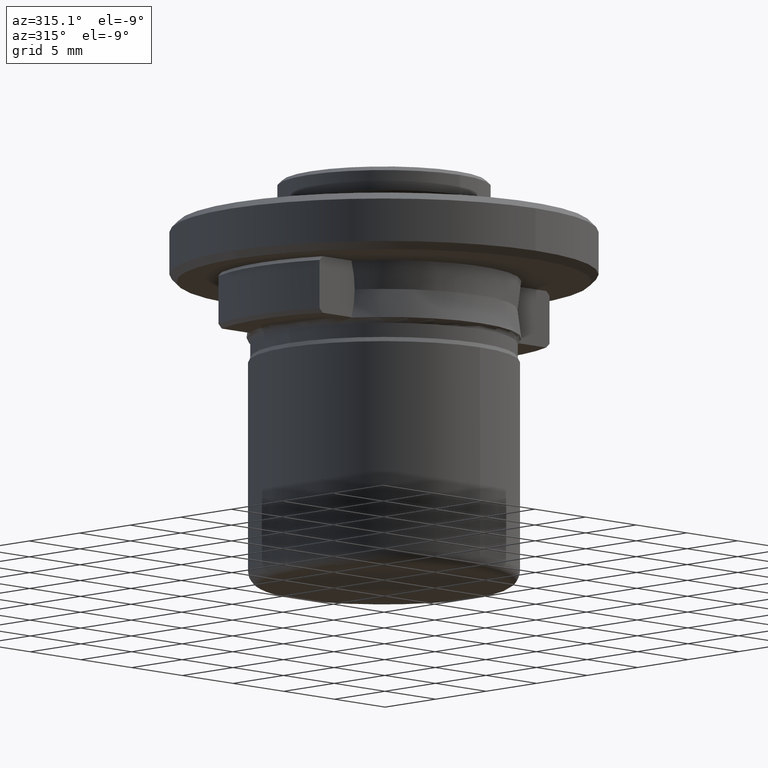
[diagram: clean part render]
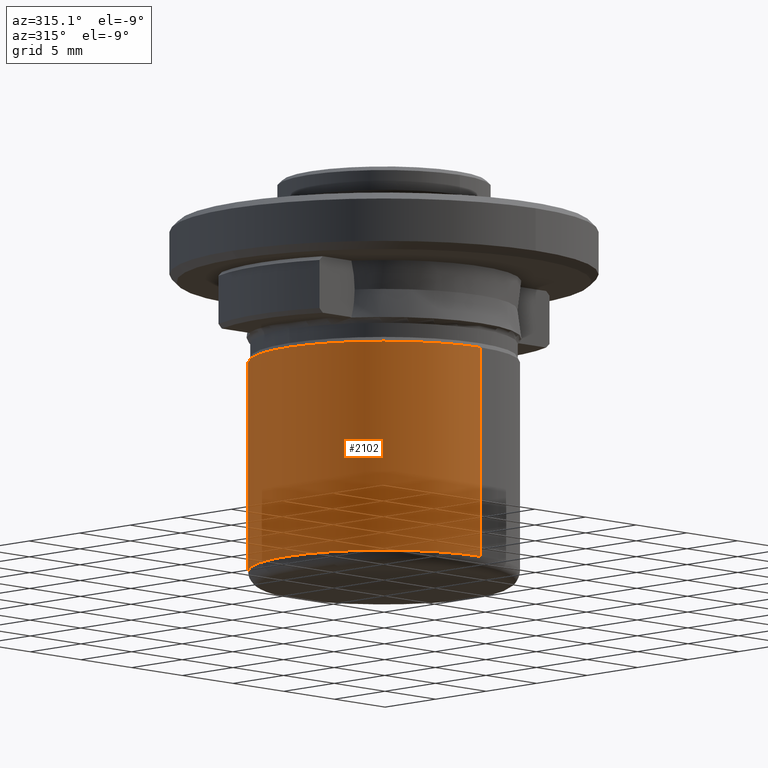
[diagram: same view with one face highlighted and labeled with its STEP entity id]
A machine part, auxiliary view. The second image highlights one B-rep face of the part: STEP entity #2102.
In plain terms, the highlighted cylindrical surface (partial cylindrical patch) has radius 9.5 mm, axis along (0, -0, 1).
Its self-contained STEP definition (entity closure, byte-faithful):
#27 = CIRCLE ( 'NONE', #1386, 9.500000000000000000 ) ;
#52 = AXIS2_PLACEMENT_3D ( 'NONE', #1679, #673, #1859 ) ;
#67 = AXIS2_PLACEMENT_3D ( 'NONE', #336, #128, #1003 ) ;
#111 = AXIS2_PLACEMENT_3D ( 'NONE', #753, #929, #1084 ) ;
#122 = CARTESIAN_POINT ( 'NONE',  ( 1.163414459189985500E-015, 9.500000000000000000, 3.030000000000088200 ) ) ;
#128 = DIRECTION ( 'NONE',  ( 0.0000000000000000000, 0.0000000000000000000, -1.000000000000000000 ) ) ;
#173 = ORIENTED_EDGE ( 'NONE', *, *, #1507, .T. ) ;
#311 = VERTEX_POINT ( 'NONE', #122 ) ;
#321 = VERTEX_POINT ( 'NONE', #396 ) ;
#336 = CARTESIAN_POINT ( 'NONE',  ( 0.0000000000000000000, 0.0000000000000000000, 3.030000000000088200 ) ) ;
#396 = CARTESIAN_POINT ( 'NONE',  ( 0.0000000000000000000, -9.500000000000000000, -11.75000000000000000 ) ) ;
#402 = CARTESIAN_POINT ( 'NONE',  ( 0.0000000000000000000, 0.0000000000000000000, 3.030000000000088200 ) ) ;
#404 = VECTOR ( 'NONE', #905, 1000.000000000000000 ) ;
#405 = EDGE_CURVE ( 'NONE', #1431, #311, #1743, .T. ) ;
#468 = VERTEX_POINT ( 'NONE', #908 ) ;
#472 = CARTESIAN_POINT ( 'NONE',  ( 0.0000000000000000000, 2.364620801796248300E-016, -11.75000000000000000 ) ) ;
#523 = AXIS2_PLACEMENT_3D ( 'NONE', #472, #1651, #646 ) ;
#564 = CARTESIAN_POINT ( 'NONE',  ( 1.163414459189985500E-015, 9.500000000000000000, -6.570177872000000400 ) ) ;
#573 = DIRECTION ( 'NONE',  ( -1.000000000000000000, 0.0000000000000000000, -9.312726028928122700E-015 ) ) ;
#582 = VERTEX_POINT ( 'NONE', #774 ) ;
#646 = DIRECTION ( 'NONE',  ( 1.000000000000000000, 0.0000000000000000000, 0.0000000000000000000 ) ) ;
#673 = DIRECTION ( 'NONE',  ( 0.0000000000000000000, 0.0000000000000000000, 1.000000000000000000 ) ) ;
#748 = CYLINDRICAL_SURFACE ( 'NONE', #111, 9.500000000000000000 ) ;
#753 = CARTESIAN_POINT ( 'NONE',  ( 0.0000000000000000000, 0.0000000000000000000, -6.570177872000000400 ) ) ;
#774 = CARTESIAN_POINT ( 'NONE',  ( -9.500000000000001800, 1.399876539369610000E-015, -11.75000000000000000 ) ) ;
#905 = DIRECTION ( 'NONE',  ( 0.0000000000000000000, -4.565061778886334800E-017, 1.000000000000000000 ) ) ;
#908 = CARTESIAN_POINT ( 'NONE',  ( 1.163414459189985500E-015, 9.500000000000000000, -11.75000000000000000 ) ) ;
#929 = DIRECTION ( 'NONE',  ( 0.0000000000000000000, -4.565061778886334800E-017, 1.000000000000000000 ) ) ;
#1003 = DIRECTION ( 'NONE',  ( -1.000000000000000000, 0.0000000000000000000, -9.312726028928122700E-015 ) ) ;
#1063 = EDGE_CURVE ( 'NONE', #468, #311, #1808, .T. ) ;
#1084 = DIRECTION ( 'NONE',  ( 0.0000000000000000000, -1.000000000000000000, 0.0000000000000000000 ) ) ;
#1118 = EDGE_CURVE ( 'NONE', #582, #321, #1196, .T. ) ;
#1173 = CARTESIAN_POINT ( 'NONE',  ( 0.0000000000000000000, -9.500000000000000000, -6.570177872000000400 ) ) ;
#1196 = CIRCLE ( 'NONE', #52, 9.500000000000000000 ) ;
#1319 = CARTESIAN_POINT ( 'NONE',  ( -9.499999999999957400, 0.0000000000000000000, 3.030000000000088200 ) ) ;
#1326 = LINE ( 'NONE', #1173, #1660 ) ;
#1338 = DIRECTION ( 'NONE',  ( 0.0000000000000000000, -4.565061778886334800E-017, 1.000000000000000000 ) ) ;
#1366 = VERTEX_POINT ( 'NONE', #1970 ) ;
#1386 = AXIS2_PLACEMENT_3D ( 'NONE', #402, #1574, #573 ) ;
#1431 = VERTEX_POINT ( 'NONE', #1319 ) ;
#1501 = CIRCLE ( 'NONE', #523, 9.500000000000000000 ) ;
#1503 = EDGE_LOOP ( 'NONE', ( #2066, #1649, #1856, #173, #1548, #2050 ) ) ;
#1507 = EDGE_CURVE ( 'NONE', #321, #1366, #1326, .T. ) ;
#1548 = ORIENTED_EDGE ( 'NONE', *, *, #2075, .T. ) ;
#1574 = DIRECTION ( 'NONE',  ( 0.0000000000000000000, 0.0000000000000000000, -1.000000000000000000 ) ) ;
#1642 = FACE_OUTER_BOUND ( 'NONE', #1503, .T. ) ;
#1649 = ORIENTED_EDGE ( 'NONE', *, *, #1684, .T. ) ;
#1651 = DIRECTION ( 'NONE',  ( 0.0000000000000000000, 0.0000000000000000000, 1.000000000000000000 ) ) ;
#1660 = VECTOR ( 'NONE', #1338, 1000.000000000000000 ) ;
#1679 = CARTESIAN_POINT ( 'NONE',  ( 0.0000000000000000000, 2.364620801796248300E-016, -11.75000000000000000 ) ) ;
#1684 = EDGE_CURVE ( 'NONE', #468, #582, #1501, .T. ) ;
#1743 = CIRCLE ( 'NONE', #67, 9.500000000000000000 ) ;
#1808 = LINE ( 'NONE', #564, #404 ) ;
#1856 = ORIENTED_EDGE ( 'NONE', *, *, #1118, .T. ) ;
#1859 = DIRECTION ( 'NONE',  ( 1.000000000000000000, 0.0000000000000000000, 0.0000000000000000000 ) ) ;
#1970 = CARTESIAN_POINT ( 'NONE',  ( 0.0000000000000000000, -9.500000000000000000, 3.030000000000088200 ) ) ;
#2050 = ORIENTED_EDGE ( 'NONE', *, *, #405, .T. ) ;
#2066 = ORIENTED_EDGE ( 'NONE', *, *, #1063, .F. ) ;
#2075 = EDGE_CURVE ( 'NONE', #1366, #1431, #27, .T. ) ;
#2102 = ADVANCED_FACE ( 'NONE', ( #1642 ), #748, .T. ) ;